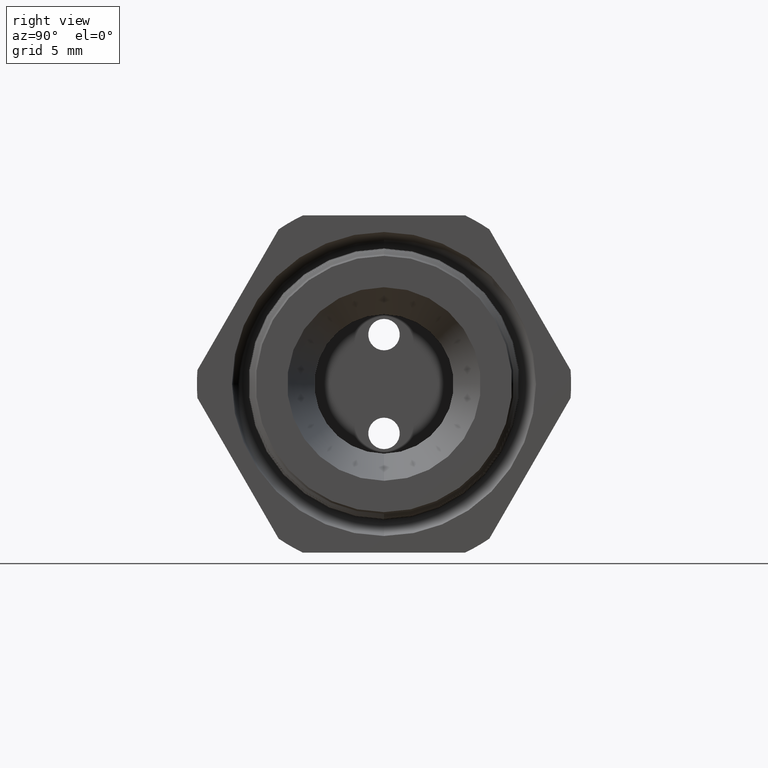
[diagram: clean part render]
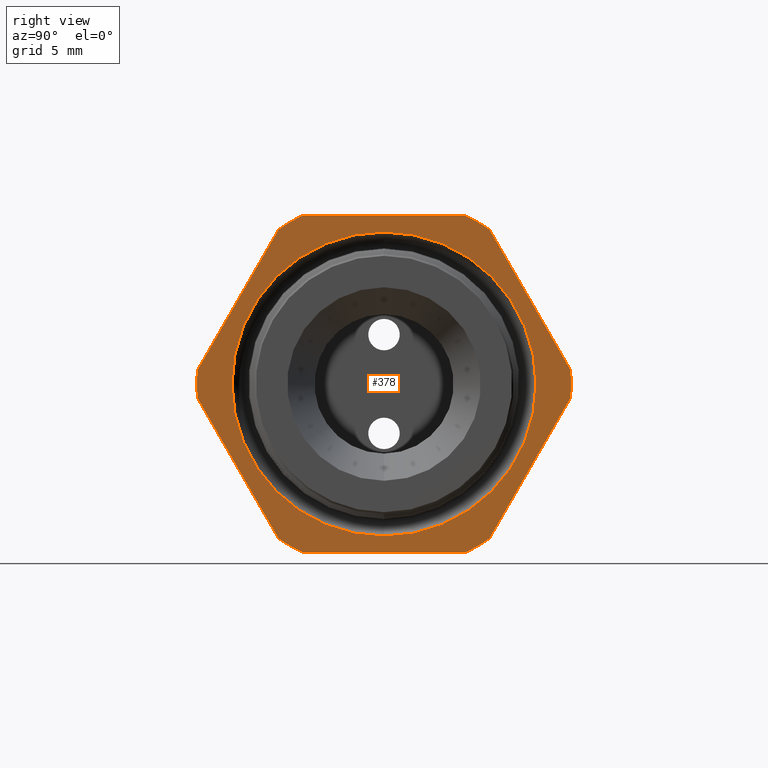
[diagram: same view with one face highlighted and labeled with its STEP entity id]
A machine part, right view. The second image highlights one B-rep face of the part: STEP entity #378.
In plain terms, the highlighted planar face has unit normal (1, 0, 0).
Its self-contained STEP definition (entity closure, byte-faithful):
#301 = ORIENTED_EDGE ( 'NONE', *, *, #302, .T. ) ;
#302 = EDGE_CURVE ( 'NONE', #386, #303, #1945, .T. ) ;
#303 = VERTEX_POINT ( 'NONE', #1941 ) ;
#304 = VERTEX_POINT ( 'NONE', #1940 ) ;
#318 = EDGE_LOOP ( 'NONE', ( #379, #381 ) ) ;
#348 = VERTEX_POINT ( 'NONE', #2023 ) ;
#349 = ORIENTED_EDGE ( 'NONE', *, *, #350, .T. ) ;
#350 = EDGE_CURVE ( 'NONE', #348, #351, #2083, .T. ) ;
#351 = VERTEX_POINT ( 'NONE', #2078 ) ;
#352 = ORIENTED_EDGE ( 'NONE', *, *, #353, .T. ) ;
#353 = EDGE_CURVE ( 'NONE', #351, #354, #2077, .T. ) ;
#354 = VERTEX_POINT ( 'NONE', #2073 ) ;
#355 = ORIENTED_EDGE ( 'NONE', *, *, #356, .T. ) ;
#356 = EDGE_CURVE ( 'NONE', #354, #357, #2072, .T. ) ;
#357 = VERTEX_POINT ( 'NONE', #2067 ) ;
#358 = ORIENTED_EDGE ( 'NONE', *, *, #359, .T. ) ;
#359 = EDGE_CURVE ( 'NONE', #357, #360, #2066, .T. ) ;
#360 = VERTEX_POINT ( 'NONE', #2062 ) ;
#361 = ORIENTED_EDGE ( 'NONE', *, *, #362, .T. ) ;
#362 = EDGE_CURVE ( 'NONE', #360, #385, #2061, .T. ) ;
#363 = ORIENTED_EDGE ( 'NONE', *, *, #364, .T. ) ;
#364 = EDGE_CURVE ( 'NONE', #303, #304, #2056, .T. ) ;
#365 = ORIENTED_EDGE ( 'NONE', *, *, #366, .T. ) ;
#366 = EDGE_CURVE ( 'NONE', #304, #367, #2116, .T. ) ;
#367 = VERTEX_POINT ( 'NONE', #2111 ) ;
#368 = ORIENTED_EDGE ( 'NONE', *, *, #369, .T. ) ;
#369 = EDGE_CURVE ( 'NONE', #367, #370, #2110, .T. ) ;
#370 = VERTEX_POINT ( 'NONE', #2106 ) ;
#371 = ORIENTED_EDGE ( 'NONE', *, *, #372, .T. ) ;
#372 = EDGE_CURVE ( 'NONE', #370, #373, #2105, .T. ) ;
#373 = VERTEX_POINT ( 'NONE', #2100 ) ;
#374 = ORIENTED_EDGE ( 'NONE', *, *, #375, .T. ) ;
#375 = EDGE_CURVE ( 'NONE', #373, #348, #2099, .T. ) ;
#378 = ADVANCED_FACE ( 'NONE', ( #2091, #2090 ), #2089, .T. ) ;
#379 = ORIENTED_EDGE ( 'NONE', *, *, #380, .F. ) ;
#380 = EDGE_CURVE ( 'NONE', #984, #978, #2084, .T. ) ;
#381 = ORIENTED_EDGE ( 'NONE', *, *, #983, .F. ) ;
#382 = EDGE_LOOP ( 'NONE', ( #383, #301, #363, #365, #368, #371, #374, #349, #352, #355, #358, #361 ) ) ;
#383 = ORIENTED_EDGE ( 'NONE', *, *, #384, .T. ) ;
#384 = EDGE_CURVE ( 'NONE', #385, #386, #2148, .T. ) ;
#385 = VERTEX_POINT ( 'NONE', #2140 ) ;
#386 = VERTEX_POINT ( 'NONE', #2139 ) ;
#978 = VERTEX_POINT ( 'NONE', #3006 ) ;
#983 = EDGE_CURVE ( 'NONE', #978, #984, #2994, .T. ) ;
#984 = VERTEX_POINT ( 'NONE', #2989 ) ;
#1940 = CARTESIAN_POINT ( 'NONE',  ( -0.3100000000000000000, 0.2344281053908206000, 0.3439586107409877100 ) ) ;
#1941 = CARTESIAN_POINT ( 'NONE',  ( -0.3100000000000000000, 0.4150909474475088000, 0.03104138925901233200 ) ) ;
#1942 = DIRECTION ( 'NONE',  ( 0.0000000000000000000, 0.0000000000000000000, -1.000000000000000000 ) ) ;
#1943 = DIRECTION ( 'NONE',  ( 1.000000000000000000, 0.0000000000000000000, 0.0000000000000000000 ) ) ;
#1944 = AXIS2_PLACEMENT_3D ( 'NONE', #1951, #1943, #1942 ) ;
#1945 = CIRCLE ( 'NONE', #1944, 0.4162500000000000100 ) ;
#1951 = CARTESIAN_POINT ( 'NONE',  ( -0.3100000000000000000, 0.0000000000000000000, 0.0000000000000000000 ) ) ;
#2023 = CARTESIAN_POINT ( 'NONE',  ( -0.3100000000000000000, -0.4150909474475088000, 0.03104138925901241800 ) ) ;
#2053 = DIRECTION ( 'NONE',  ( 0.0000000000000000000, -0.4999999999999998300, 0.8660254037844386000 ) ) ;
#2054 = VECTOR ( 'NONE', #2053, 39.37007874015748900 ) ;
#2055 = CARTESIAN_POINT ( 'NONE',  ( -0.3100000000000000000, 0.5122595264191646100, -0.1372595264191644500 ) ) ;
#2056 = LINE ( 'NONE', #2055, #2054 ) ;
#2057 = DIRECTION ( 'NONE',  ( 0.0000000000000000000, 0.0000000000000000000, -1.000000000000000000 ) ) ;
#2058 = DIRECTION ( 'NONE',  ( 1.000000000000000000, 0.0000000000000000000, 0.0000000000000000000 ) ) ;
#2059 = CARTESIAN_POINT ( 'NONE',  ( -0.3100000000000000000, 0.0000000000000000000, 0.0000000000000000000 ) ) ;
#2060 = AXIS2_PLACEMENT_3D ( 'NONE', #2059, #2058, #2057 ) ;
#2061 = CIRCLE ( 'NONE', #2060, 0.4162500000000000100 ) ;
#2062 = CARTESIAN_POINT ( 'NONE',  ( -0.3100000000000000000, 0.1806628420566884800, -0.3750000000000001100 ) ) ;
#2063 = DIRECTION ( 'NONE',  ( 0.0000000000000000000, 1.000000000000000000, 0.0000000000000000000 ) ) ;
#2064 = VECTOR ( 'NONE', #2063, 39.37007874015748100 ) ;
#2065 = CARTESIAN_POINT ( 'NONE',  ( -0.3100000000000000000, 0.7500000000000001100, -0.3750000000000001100 ) ) ;
#2066 = LINE ( 'NONE', #2065, #2064 ) ;
#2067 = CARTESIAN_POINT ( 'NONE',  ( -0.3100000000000000000, -0.1806628420566883900, -0.3750000000000001100 ) ) ;
#2068 = DIRECTION ( 'NONE',  ( 0.0000000000000000000, 0.0000000000000000000, -1.000000000000000000 ) ) ;
#2069 = DIRECTION ( 'NONE',  ( 1.000000000000000000, 0.0000000000000000000, 0.0000000000000000000 ) ) ;
#2070 = CARTESIAN_POINT ( 'NONE',  ( -0.3100000000000000000, 0.0000000000000000000, 0.0000000000000000000 ) ) ;
#2071 = AXIS2_PLACEMENT_3D ( 'NONE', #2070, #2069, #2068 ) ;
#2072 = CIRCLE ( 'NONE', #2071, 0.4162500000000000100 ) ;
#2073 = CARTESIAN_POINT ( 'NONE',  ( -0.3100000000000000000, -0.2344281053908202100, -0.3439586107409880500 ) ) ;
#2074 = DIRECTION ( 'NONE',  ( 0.0000000000000000000, 0.5000000000000002200, -0.8660254037844384900 ) ) ;
#2075 = VECTOR ( 'NONE', #2074, 39.37007874015748900 ) ;
#2076 = CARTESIAN_POINT ( 'NONE',  ( -0.3100000000000000000, -0.1372595264191642800, -0.5122595264191648300 ) ) ;
#2077 = LINE ( 'NONE', #2076, #2075 ) ;
#2078 = CARTESIAN_POINT ( 'NONE',  ( -0.3100000000000000000, -0.4150909474475088000, -0.03104138925901237000 ) ) ;
#2079 = DIRECTION ( 'NONE',  ( 0.0000000000000000000, 0.0000000000000000000, -1.000000000000000000 ) ) ;
#2080 = DIRECTION ( 'NONE',  ( 1.000000000000000000, 0.0000000000000000000, 0.0000000000000000000 ) ) ;
#2081 = CARTESIAN_POINT ( 'NONE',  ( -0.3100000000000000000, 0.0000000000000000000, 0.0000000000000000000 ) ) ;
#2082 = AXIS2_PLACEMENT_3D ( 'NONE', #2081, #2080, #2079 ) ;
#2083 = CIRCLE ( 'NONE', #2082, 0.4162500000000000100 ) ;
#2084 = CIRCLE ( 'NONE', #2147, 0.3380965299414689900 ) ;
#2085 = DIRECTION ( 'NONE',  ( 0.0000000000000000000, 0.0000000000000000000, -1.000000000000000000 ) ) ;
#2086 = DIRECTION ( 'NONE',  ( 1.000000000000000000, 0.0000000000000000000, 0.0000000000000000000 ) ) ;
#2087 = CARTESIAN_POINT ( 'NONE',  ( -0.3100000000000000000, 0.7500000000000001100, 0.0000000000000000000 ) ) ;
#2088 = AXIS2_PLACEMENT_3D ( 'NONE', #2087, #2086, #2085 ) ;
#2089 = PLANE ( 'NONE',  #2088 ) ;
#2090 = FACE_OUTER_BOUND ( 'NONE', #382, .T. ) ;
#2091 = FACE_BOUND ( 'NONE', #318, .T. ) ;
#2096 = DIRECTION ( 'NONE',  ( 0.0000000000000000000, -0.4999999999999998300, -0.8660254037844386000 ) ) ;
#2097 = VECTOR ( 'NONE', #2096, 39.37007874015748900 ) ;
#2098 = CARTESIAN_POINT ( 'NONE',  ( -0.3100000000000000000, -0.1372595264191648300, 0.5122595264191645000 ) ) ;
#2099 = LINE ( 'NONE', #2098, #2097 ) ;
#2100 = CARTESIAN_POINT ( 'NONE',  ( -0.3100000000000000000, -0.2344281053908205100, 0.3439586107409878200 ) ) ;
#2101 = DIRECTION ( 'NONE',  ( 0.0000000000000000000, 0.0000000000000000000, -1.000000000000000000 ) ) ;
#2102 = DIRECTION ( 'NONE',  ( 1.000000000000000000, 0.0000000000000000000, 0.0000000000000000000 ) ) ;
#2103 = CARTESIAN_POINT ( 'NONE',  ( -0.3100000000000000000, 0.0000000000000000000, 0.0000000000000000000 ) ) ;
#2104 = AXIS2_PLACEMENT_3D ( 'NONE', #2103, #2102, #2101 ) ;
#2105 = CIRCLE ( 'NONE', #2104, 0.4162500000000000100 ) ;
#2106 = CARTESIAN_POINT ( 'NONE',  ( -0.3100000000000000000, -0.1806628420566886700, 0.3749999999999999400 ) ) ;
#2107 = DIRECTION ( 'NONE',  ( 0.0000000000000000000, -1.000000000000000000, 0.0000000000000000000 ) ) ;
#2108 = VECTOR ( 'NONE', #2107, 39.37007874015748100 ) ;
#2109 = CARTESIAN_POINT ( 'NONE',  ( -0.3100000000000000000, 0.7500000000000001100, 0.3749999999999999400 ) ) ;
#2110 = LINE ( 'NONE', #2109, #2108 ) ;
#2111 = CARTESIAN_POINT ( 'NONE',  ( -0.3100000000000000000, 0.1806628420566887000, 0.3749999999999999400 ) ) ;
#2112 = DIRECTION ( 'NONE',  ( 0.0000000000000000000, 0.0000000000000000000, -1.000000000000000000 ) ) ;
#2113 = DIRECTION ( 'NONE',  ( 1.000000000000000000, 0.0000000000000000000, 0.0000000000000000000 ) ) ;
#2114 = CARTESIAN_POINT ( 'NONE',  ( -0.3100000000000000000, 0.0000000000000000000, 0.0000000000000000000 ) ) ;
#2115 = AXIS2_PLACEMENT_3D ( 'NONE', #2114, #2113, #2112 ) ;
#2116 = CIRCLE ( 'NONE', #2115, 0.4162499999999999500 ) ;
#2139 = CARTESIAN_POINT ( 'NONE',  ( -0.3100000000000000000, 0.4150909474475088000, -0.03104138925901222000 ) ) ;
#2140 = CARTESIAN_POINT ( 'NONE',  ( -0.3100000000000000000, 0.2344281053908202900, -0.3439586107409879900 ) ) ;
#2141 = DIRECTION ( 'NONE',  ( 0.0000000000000000000, 0.5000000000000001100, 0.8660254037844386000 ) ) ;
#2142 = VECTOR ( 'NONE', #2141, 39.37007874015748900 ) ;
#2143 = CARTESIAN_POINT ( 'NONE',  ( -0.3100000000000000000, 0.5122595264191646100, 0.1372595264191645000 ) ) ;
#2144 = DIRECTION ( 'NONE',  ( 0.0000000000000000000, 0.0000000000000000000, -1.000000000000000000 ) ) ;
#2145 = DIRECTION ( 'NONE',  ( 1.000000000000000000, 0.0000000000000000000, 0.0000000000000000000 ) ) ;
#2146 = CARTESIAN_POINT ( 'NONE',  ( -0.3100000000000000000, 0.0000000000000000000, 0.0000000000000000000 ) ) ;
#2147 = AXIS2_PLACEMENT_3D ( 'NONE', #2146, #2145, #2144 ) ;
#2148 = LINE ( 'NONE', #2143, #2142 ) ;
#2989 = CARTESIAN_POINT ( 'NONE',  ( -0.3100000000000000000, 0.0000000000000000000, -0.3380965299414689900 ) ) ;
#2990 = DIRECTION ( 'NONE',  ( 0.0000000000000000000, 0.0000000000000000000, -1.000000000000000000 ) ) ;
#2991 = DIRECTION ( 'NONE',  ( 1.000000000000000000, 0.0000000000000000000, 0.0000000000000000000 ) ) ;
#2992 = CARTESIAN_POINT ( 'NONE',  ( -0.3100000000000000000, 0.0000000000000000000, 0.0000000000000000000 ) ) ;
#2993 = AXIS2_PLACEMENT_3D ( 'NONE', #2992, #2991, #2990 ) ;
#2994 = CIRCLE ( 'NONE', #2993, 0.3380965299414689900 ) ;
#3006 = CARTESIAN_POINT ( 'NONE',  ( -0.3100000000000000000, 4.140488331956472800E-017, 0.3380965299414689900 ) ) ;